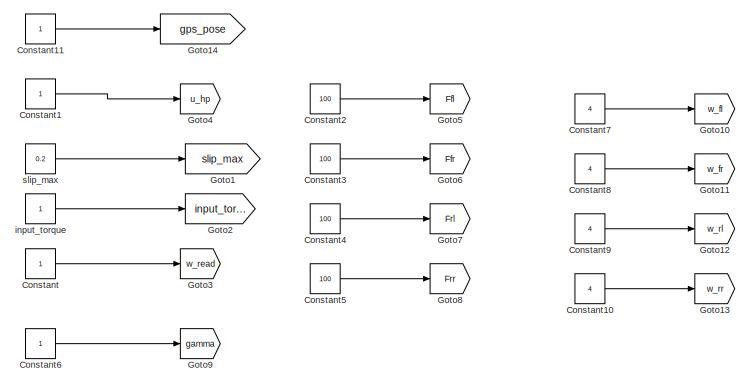
[diagram: root canvas - part 1/5, top center region]
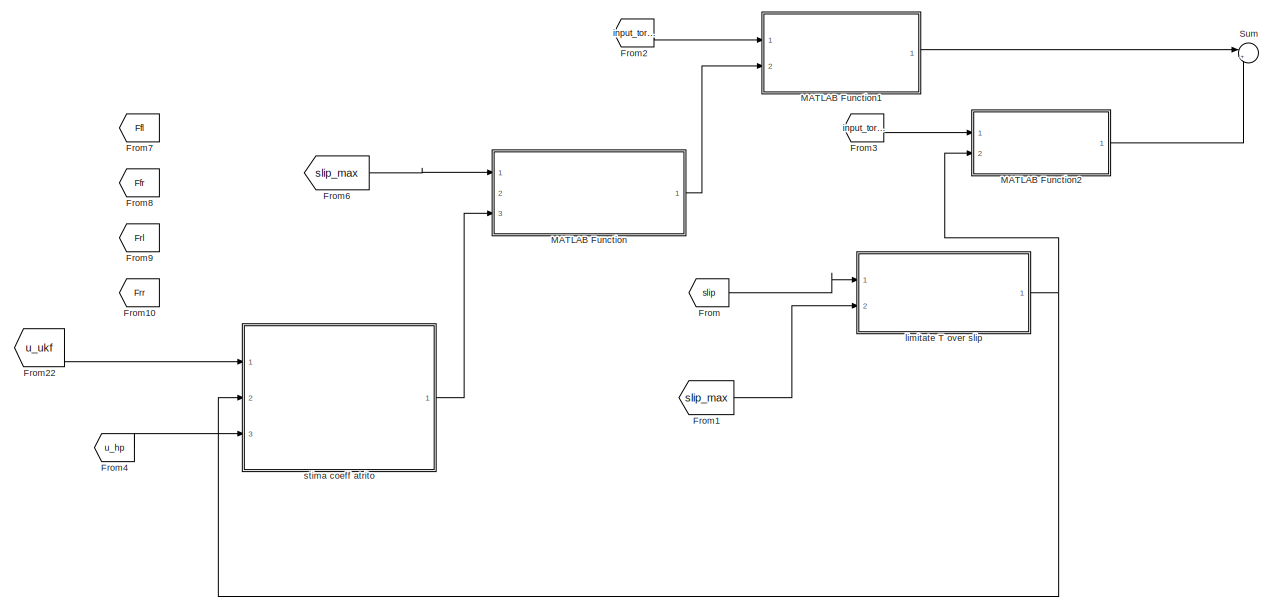
[diagram: root canvas - part 2/5, middle right region]
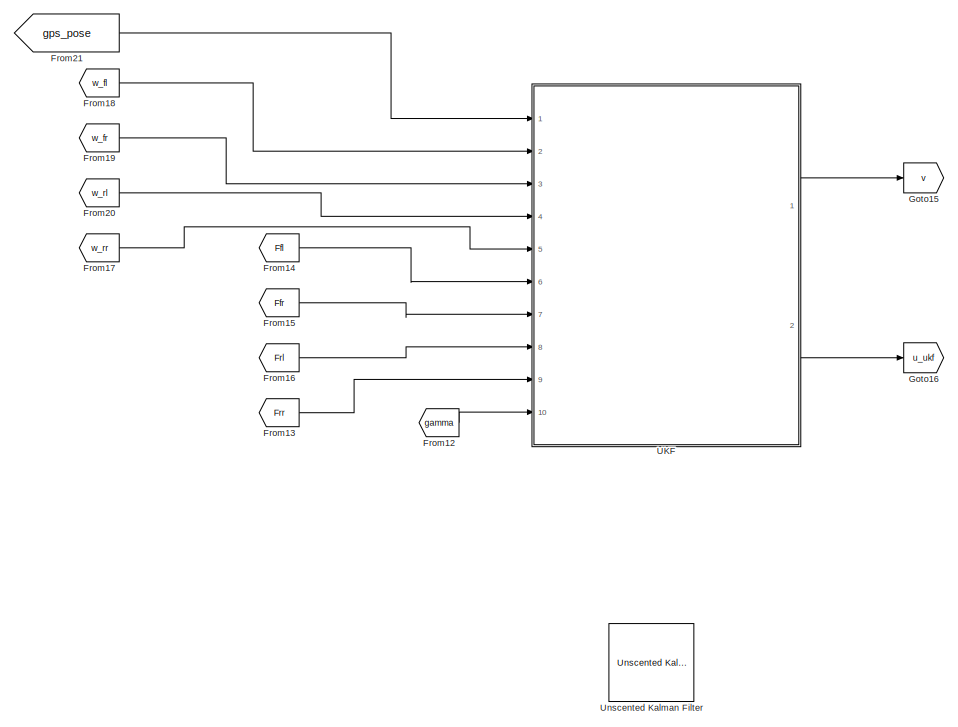
[diagram: root canvas - part 3/5, bottom left region]
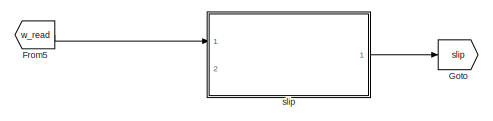
[diagram: root canvas - part 4/5, bottom center region]
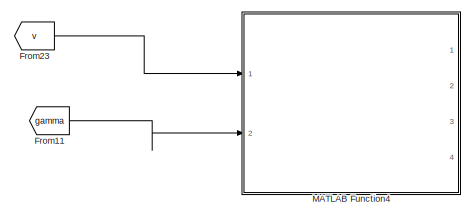
[diagram: root canvas - part 5/5, bottom right region]
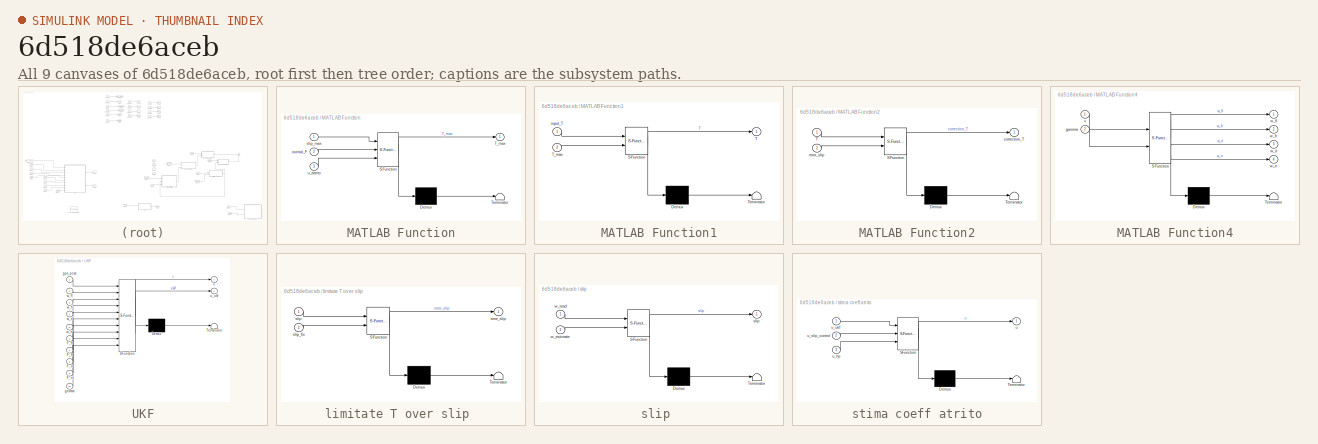
[diagram: thumbnail index - all 9 canvases of the model, root first then tree order]
MODEL slx_6d518de6aceb
KIND model
CONFIG AbsTol = auto
CONFIG EnableMultiTasking = off
CONFIG FixedStep = auto
CONFIG MaxStep = auto
CONFIG MinStep = auto
CONFIG RelTol = 1e-3
CONFIG SampleTimeConstraint = Unconstrained
CONFIG Solver = VariableStepAuto
CONFIG SolverName = VariableStepAuto
CONFIG StartTime = 0.0
CONFIG StopTime = 10.0
BLOCK [Constant] Constant
BLOCK [Constant] Constant1
BLOCK [Constant] Constant10
  Value = 4
BLOCK [Constant] Constant11
BLOCK [Constant] Constant2
  Value = 100
BLOCK [Constant] Constant3
  Value = 100
BLOCK [Constant] Constant4
  Value = 100
BLOCK [Constant] Constant5
  Value = 100
BLOCK [Constant] Constant6
BLOCK [Constant] Constant7
  Value = 4
BLOCK [Constant] Constant8
  Value = 4
BLOCK [Constant] Constant9
  Value = 4
BLOCK [From] From
  GotoTag = slip
BLOCK [From] From1
  GotoTag = slip_max
BLOCK [From] From10
  GotoTag = Frr
BLOCK [From] From11
  GotoTag = gamma
BLOCK [From] From12
  GotoTag = gamma
BLOCK [From] From13
  GotoTag = Frr
BLOCK [From] From14
  GotoTag = Ffl
BLOCK [From] From15
  GotoTag = Ffr
BLOCK [From] From16
  GotoTag = Frl
BLOCK [From] From17
  GotoTag = w_rr
BLOCK [From] From18
  GotoTag = w_fl
BLOCK [From] From19
  GotoTag = w_fr
BLOCK [From] From2
  GotoTag = input_torque
BLOCK [From] From20
  GotoTag = w_rl
BLOCK [From] From21
  GotoTag = gps_pose
BLOCK [From] From22
  GotoTag = u_ukf
BLOCK [From] From23
  GotoTag = v
BLOCK [From] From3
  GotoTag = input_torque
BLOCK [From] From4
  GotoTag = u_hp
BLOCK [From] From5
  GotoTag = w_read
BLOCK [From] From6
  GotoTag = slip_max
BLOCK [From] From7
  GotoTag = Ffl
BLOCK [From] From8
  GotoTag = Ffr
BLOCK [From] From9
  GotoTag = Frl
BLOCK [Goto] Goto
  GotoTag = slip
BLOCK [Goto] Goto1
  GotoTag = slip_max
BLOCK [Goto] Goto10
  GotoTag = w_fl
BLOCK [Goto] Goto11
  GotoTag = w_fr
BLOCK [Goto] Goto12
  GotoTag = w_rl
BLOCK [Goto] Goto13
  GotoTag = w_rr
BLOCK [Goto] Goto14
  GotoTag = gps_pose
BLOCK [Goto] Goto15
  GotoTag = v
BLOCK [Goto] Goto16
  GotoTag = u_ukf
BLOCK [Goto] Goto2
  GotoTag = input_torque
BLOCK [Goto] Goto3
  GotoTag = w_read
BLOCK [Goto] Goto4
  GotoTag = u_hp
BLOCK [Goto] Goto5
  GotoTag = Ffl
BLOCK [Goto] Goto6
  GotoTag = Ffr
BLOCK [Goto] Goto7
  GotoTag = Frl
BLOCK [Goto] Goto8
  GotoTag = Frr
BLOCK [Goto] Goto9
  GotoTag = gamma
BLOCK [SubSystem] MATLAB Function
  ErrorFcn = Stateflow.Translate.translate
  PermitHierarchicalResolution = ExplicitOnly
  Ports = [3, 1]
  RequestExecContextInheritance = off
  SFBlockType = MATLAB Function
  TreatAsAtomicUnit = on
BLOCK [Demux] MATLAB Function/ Demux 
  Outputs = 1
  Ports = [1, 1]
BLOCK [S-Function] MATLAB Function/ SFunction 
  EnableBusSupport = off
  FunctionName = sf_sfun
  PortCounts = [3 2]
  Ports = [3, 2]
  SFcnIsStateOwnerBlock = off
  SFunctionDeploymentMode = off
  Tag = Stateflow S-Function 2
BLOCK [Terminator] MATLAB Function/ Terminator 
BLOCK [Outport] MATLAB Function/T_max
  IconDisplay = Port number
BLOCK [Inport] MATLAB Function/normal_F
  IconDisplay = Port number
  Port = 2
BLOCK [Inport] MATLAB Function/slip_max
  IconDisplay = Port number
BLOCK [Inport] MATLAB Function/u_attrito
  IconDisplay = Port number
  Port = 3
BLOCK [SubSystem] MATLAB Function1
  ErrorFcn = Stateflow.Translate.translate
  PermitHierarchicalResolution = ExplicitOnly
  Ports = [2, 1]
  RequestExecContextInheritance = off
  SFBlockType = MATLAB Function
  TreatAsAtomicUnit = on
BLOCK [Demux] MATLAB Function1/ Demux 
  Outputs = 1
  Ports = [1, 1]
BLOCK [S-Function] MATLAB Function1/ SFunction 
  EnableBusSupport = off
  FunctionName = sf_sfun
  PortCounts = [2 2]
  Ports = [2, 2]
  SFcnIsStateOwnerBlock = off
  SFunctionDeploymentMode = off
  Tag = Stateflow S-Function 1
BLOCK [Terminator] MATLAB Function1/ Terminator 
BLOCK [Outport] MATLAB Function1/T
  IconDisplay = Port number
BLOCK [Inport] MATLAB Function1/T_max
  IconDisplay = Port number
  Port = 2
BLOCK [Inport] MATLAB Function1/input_T
  IconDisplay = Port number
BLOCK [SubSystem] MATLAB Function2
  ErrorFcn = Stateflow.Translate.translate
  PermitHierarchicalResolution = ExplicitOnly
  Ports = [2, 1]
  RequestExecContextInheritance = off
  SFBlockType = MATLAB Function
  TreatAsAtomicUnit = on
BLOCK [Demux] MATLAB Function2/ Demux 
  Outputs = 1
  Ports = [1, 1]
BLOCK [S-Function] MATLAB Function2/ SFunction 
  EnableBusSupport = off
  FunctionName = sf_sfun
  PortCounts = [2 2]
  Ports = [2, 2]
  SFcnIsStateOwnerBlock = off
  SFunctionDeploymentMode = off
  Tag = Stateflow S-Function 6
BLOCK [Terminator] MATLAB Function2/ Terminator 
BLOCK [Inport] MATLAB Function2/T
  IconDisplay = Port number
BLOCK [Outport] MATLAB Function2/correction_T
  IconDisplay = Port number
BLOCK [Inport] MATLAB Function2/error_slip
  IconDisplay = Port number
  Port = 2
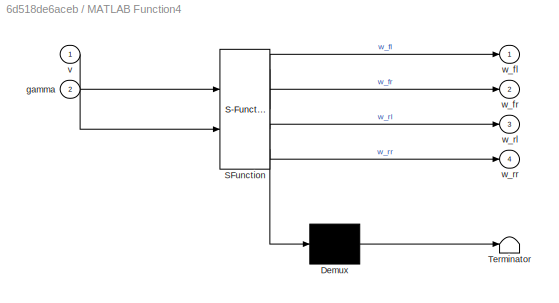
BLOCK [SubSystem] MATLAB Function4
  ErrorFcn = Stateflow.Translate.translate
  PermitHierarchicalResolution = ExplicitOnly
  Ports = [2, 4]
  RequestExecContextInheritance = off
  SFBlockType = MATLAB Function
  TreatAsAtomicUnit = on
BLOCK [Demux] MATLAB Function4/ Demux 
  Outputs = 1
  Ports = [1, 1]
BLOCK [S-Function] MATLAB Function4/ SFunction 
  EnableBusSupport = off
  FunctionName = sf_sfun
  PortCounts = [2 5]
  Ports = [2, 5]
  SFcnIsStateOwnerBlock = off
  SFunctionDeploymentMode = off
  Tag = Stateflow S-Function 9
BLOCK [Terminator] MATLAB Function4/ Terminator 
BLOCK [Inport] MATLAB Function4/gamma
  IconDisplay = Port number
  Port = 2
BLOCK [Inport] MATLAB Function4/v
  IconDisplay = Port number
BLOCK [Outport] MATLAB Function4/w_fl
  IconDisplay = Port number
BLOCK [Outport] MATLAB Function4/w_fr
  IconDisplay = Port number
  Port = 2
BLOCK [Outport] MATLAB Function4/w_rl
  IconDisplay = Port number
  Port = 3
BLOCK [Outport] MATLAB Function4/w_rr
  IconDisplay = Port number
  Port = 4
BLOCK [Sum] Sum
  IconShape = round
  InputSameDT = off
  Inputs = |+-
  OutDataTypeStr = Inherit: Inherit via internal rule
  Ports = [2, 1]
  SaturateOnIntegerOverflow = off
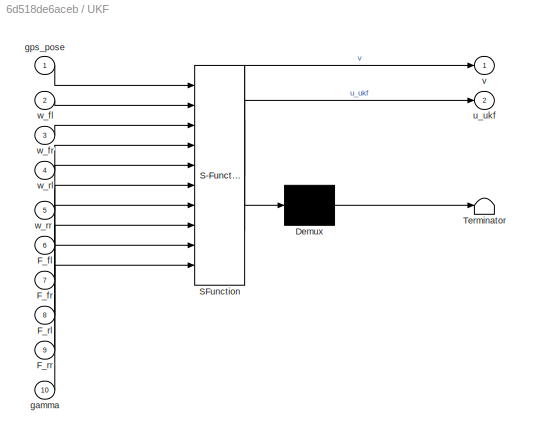
BLOCK [SubSystem] UKF
  ErrorFcn = Stateflow.Translate.translate
  PermitHierarchicalResolution = ExplicitOnly
  Ports = [10, 2]
  RequestExecContextInheritance = off
  SFBlockType = MATLAB Function
  TreatAsAtomicUnit = on
BLOCK [Demux] UKF/ Demux 
  Outputs = 1
  Ports = [1, 1]
BLOCK [S-Function] UKF/ SFunction 
  EnableBusSupport = off
  FunctionName = sf_sfun
  PortCounts = [10 3]
  Ports = [10, 3]
  SFcnIsStateOwnerBlock = off
  SFunctionDeploymentMode = off
  Tag = Stateflow S-Function 8
BLOCK [Terminator] UKF/ Terminator 
BLOCK [Inport] UKF/F_fl
  IconDisplay = Port number
  Port = 6
BLOCK [Inport] UKF/F_fr
  IconDisplay = Port number
  Port = 7
BLOCK [Inport] UKF/F_rl
  IconDisplay = Port number
  Port = 8
BLOCK [Inport] UKF/F_rr
  IconDisplay = Port number
  Port = 9
BLOCK [Inport] UKF/gamma
  IconDisplay = Port number
  Port = 10
BLOCK [Inport] UKF/gps_pose
  IconDisplay = Port number
BLOCK [Outport] UKF/u_ukf
  IconDisplay = Port number
  Port = 2
BLOCK [Outport] UKF/v
  IconDisplay = Port number
BLOCK [Inport] UKF/w_fl
  IconDisplay = Port number
  Port = 2
BLOCK [Inport] UKF/w_fr
  IconDisplay = Port number
  Port = 3
BLOCK [Inport] UKF/w_rl
  IconDisplay = Port number
  Port = 4
BLOCK [Inport] UKF/w_rr
  IconDisplay = Port number
  Port = 5
BLOCK [Reference] Unscented Kalman Filter  REF=sharedTrackingLibrary/Unscented Kalman Filter
  Ports = [1, 1]
  SourceBlock = sharedTrackingLibrary/Unscented Kalman Filter
  SourceProductBaseCode = DR
  SourceProductName = Automated Driving Toolbox
  SourceType = Unscented Kalman Filter
BLOCK [Constant] input_torque 
BLOCK [SubSystem] limitate T over slip 
  ErrorFcn = Stateflow.Translate.translate
  PermitHierarchicalResolution = ExplicitOnly
  Ports = [2, 1]
  RequestExecContextInheritance = off
  SFBlockType = MATLAB Function
  TreatAsAtomicUnit = on
BLOCK [Demux] limitate T over slip / Demux 
  Outputs = 1
  Ports = [1, 1]
BLOCK [S-Function] limitate T over slip / SFunction 
  EnableBusSupport = off
  FunctionName = sf_sfun
  PortCounts = [2 2]
  Ports = [2, 2]
  SFcnIsStateOwnerBlock = off
  SFunctionDeploymentMode = off
  Tag = Stateflow S-Function 5
BLOCK [Terminator] limitate T over slip / Terminator 
BLOCK [Outport] limitate T over slip /error_slip
  IconDisplay = Port number
BLOCK [Inport] limitate T over slip /slip
  IconDisplay = Port number
BLOCK [Inport] limitate T over slip /slip_fix
  IconDisplay = Port number
  Port = 2
BLOCK [SubSystem] slip 
  ErrorFcn = Stateflow.Translate.translate
  PermitHierarchicalResolution = ExplicitOnly
  Ports = [2, 1]
  RequestExecContextInheritance = off
  SFBlockType = MATLAB Function
  TreatAsAtomicUnit = on
BLOCK [Demux] slip / Demux 
  Outputs = 1
  Ports = [1, 1]
BLOCK [S-Function] slip / SFunction 
  EnableBusSupport = off
  FunctionName = sf_sfun
  PortCounts = [2 2]
  Ports = [2, 2]
  SFcnIsStateOwnerBlock = off
  SFunctionDeploymentMode = off
  Tag = Stateflow S-Function 4
BLOCK [Terminator] slip / Terminator 
BLOCK [Outport] slip /slip
  IconDisplay = Port number
BLOCK [Inport] slip /w_estimate
  IconDisplay = Port number
  Port = 2
BLOCK [Inport] slip /w_read
  IconDisplay = Port number
BLOCK [Constant] slip_max 
  Value = 0.2
BLOCK [SubSystem] stima coeff atrito
  ErrorFcn = Stateflow.Translate.translate
  PermitHierarchicalResolution = ExplicitOnly
  Ports = [3, 1]
  RequestExecContextInheritance = off
  SFBlockType = MATLAB Function
  TreatAsAtomicUnit = on
BLOCK [Demux] stima coeff atrito/ Demux 
  Outputs = 1
  Ports = [1, 1]
BLOCK [S-Function] stima coeff atrito/ SFunction 
  EnableBusSupport = off
  FunctionName = sf_sfun
  PortCounts = [3 2]
  Ports = [3, 2]
  SFcnIsStateOwnerBlock = off
  SFunctionDeploymentMode = off
  Tag = Stateflow S-Function 3
BLOCK [Terminator] stima coeff atrito/ Terminator 
BLOCK [Outport] stima coeff atrito/u
  IconDisplay = Port number
BLOCK [Inport] stima coeff atrito/u_hp
  IconDisplay = Port number
  Port = 3
BLOCK [Inport] stima coeff atrito/u_slip_control
  IconDisplay = Port number
  Port = 2
BLOCK [Inport] stima coeff atrito/u_ukf
  IconDisplay = Port number
LINE Constant10:1 -> Goto13:1
LINE Constant11:1 -> Goto14:1
LINE Constant1:1 -> Goto4:1
LINE Constant2:1 -> Goto5:1
LINE Constant3:1 -> Goto6:1
LINE Constant4:1 -> Goto7:1
LINE Constant5:1 -> Goto8:1
LINE Constant6:1 -> Goto9:1
LINE Constant7:1 -> Goto10:1
LINE Constant8:1 -> Goto11:1
LINE Constant9:1 -> Goto12:1
LINE Constant:1 -> Goto3:1
LINE From11:1 -> MATLAB Function4:2
LINE From12:1 -> UKF:10
LINE From13:1 -> UKF:9
LINE From14:1 -> UKF:6
LINE From15:1 -> UKF:7
LINE From16:1 -> UKF:8
LINE From17:1 -> UKF:5
LINE From18:1 -> UKF:2
LINE From19:1 -> UKF:3
LINE From1:1 -> limitate T over slip :2
LINE From20:1 -> UKF:4
LINE From21:1 -> UKF:1
LINE From22:1 -> stima coeff atrito:1
LINE From23:1 -> MATLAB Function4:1
LINE From2:1 -> MATLAB Function1:1
LINE From3:1 -> MATLAB Function2:1
LINE From4:1 -> stima coeff atrito:3
LINE From5:1 -> slip :1
LINE From6:1 -> MATLAB Function:1
LINE From:1 -> limitate T over slip :1
LINE MATLAB Function1:1 -> Sum:1
LINE MATLAB Function2:1 -> Sum:2
LINE MATLAB Function:1 -> MATLAB Function1:2
LINE UKF:1 -> Goto15:1
LINE UKF:2 -> Goto16:1
LINE input_torque :1 -> Goto2:1
NET limitate T over slip :1 -> MATLAB Function2:2, stima coeff atrito:2
LINE slip :1 -> Goto:1
LINE slip_max :1 -> Goto1:1
LINE stima coeff atrito:1 -> MATLAB Function:3
note: NET lines group one-source signal fan-out (src -> all destinations, sorted); 1:1 wires keep LINE
CHART MATLAB Function1 states=1 transitions=1
  STATE_LABEL 'eML_blk_kernel()'
  STATE_LABEL 'SCRIPT:\nfunction T = bound(input_T,T_max)\n\nT = min(input_t,T_max);\n'
CHART MATLAB Function states=1 transitions=1
  STATE_LABEL 'eML_blk_kernel()'
  STATE_LABEL 'SCRIPT:\nfunction T_max = max_torque(slip_max, normal_F,u_attrito)\n%funzione per determinare la massima coppia da applicare senza andare in\n%overslip\nT_max = slip_max+normal_F+u_attrito;\n'
CHART stima coeff atrito states=1 transitions=1
  STATE_LABEL 'eML_blk_kernel()'
  STATE_LABEL 'SCRIPT:\nfunction u = estimation_u(u_ukf,u_slip_control,u_hp)\n\nu = (u_ukf+u_slip_control+u_hp)/3;\n'
CHART slip
 states=1 transitions=1
  STATE_LABEL 'eML_blk_kernel()'
  STATE_LABEL 'SCRIPT:\nfunction slip = fcn(w_read,w_estimate)\n\nslip = (w_read-w_estimate)/w_estimate;\n'
CHART limitate T over slip
 states=1 transitions=1
  STATE_LABEL 'eML_blk_kernel()'
  STATE_LABEL 'SCRIPT:\nfunction error_slip = fcn(slip,slip_fix)\nif slip<slip_fix\n    error_slip=0;\n    %add increase in caso di sottostima di u\nelse\n    error_slip=(slip-slip_fix)/slip_fix;\n'
CHART MATLAB Function2 states=1 transitions=1
  STATE_LABEL 'eML_blk_kernel()'
  STATE_LABEL 'SCRIPT:\nfunction correction_T = fcn(T,error_slip)\n\ncorrection_T = error_slip*T;\n'
CHART UKF states=1 transitions=1
  STATE_LABEL 'eML_blk_kernel()'
  STATE_LABEL 'SCRIPT:\nfunction [v,u_ukf] = UKF(gps_pose,w_fl,w_fr,w_rl,w_rr,F_fl,F_fr,F_rl,F_rr,gamma)\n\n\n\n\n\n\n\n\n\nu_ukf=1;'
CHART MATLAB Function4 states=1 transitions=1
  STATE_LABEL 'eML_blk_kernel()'
  STATE_LABEL "SCRIPT:\nfunction [w_fl,w_fr,w_rl,w_rr] = differential(v,gamma)\n\nL=3;%lunghezza veicolo\nd_r=0.3;%distanza dall'asse a destra\nd_l=0.3;%distanza dall'asse a sinistra\nr_wheel=0.02;%raggio ruota\n\nd=L/tan(gamma);\nw_cir=v/d;\nv=[sqrt((d-d_l)^2+L^2),sqrt((d+d_r)^2+L^2),d-d_l,d+d_r]*w_cir;\nw=v*r_wheel;\nw_fl=w(1);\nw_fr=w(2);\nw_rl=w(3);\nw_rr=w(4);\n"
